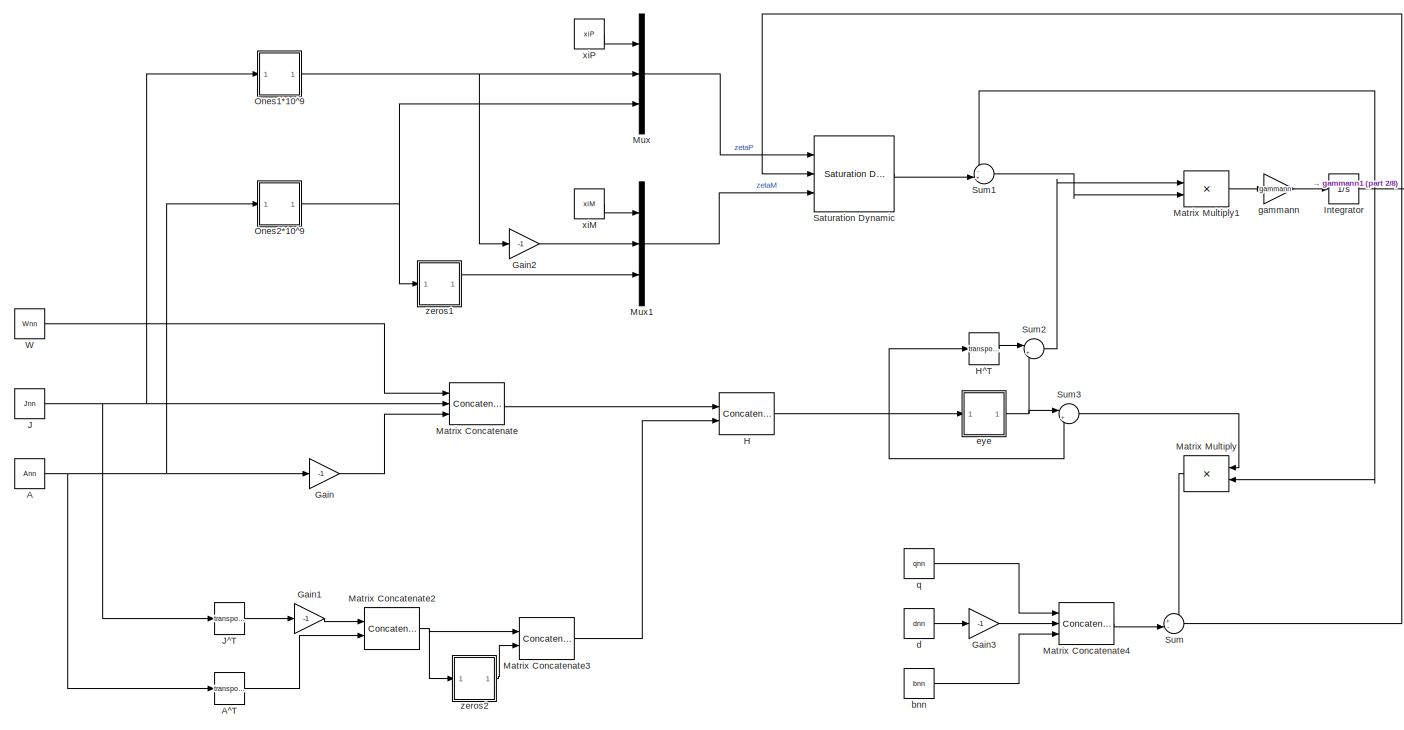
[diagram: root canvas - part 1/8, top left region]
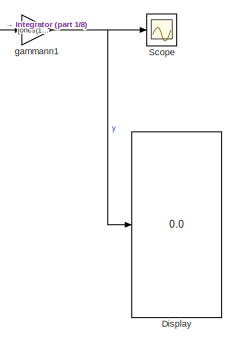
[diagram: root canvas - part 2/8, top center region]
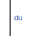
[diagram: root canvas - part 3/8, top right region]
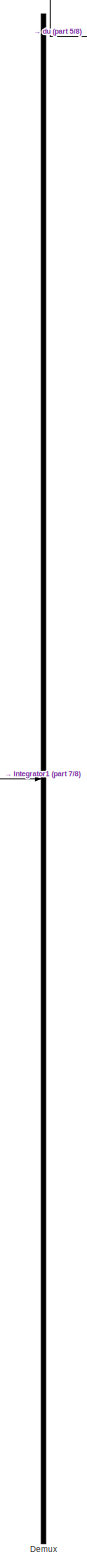
[diagram: root canvas - part 4/8, right side, full height]
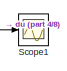
[diagram: root canvas - part 5/8, top right region]
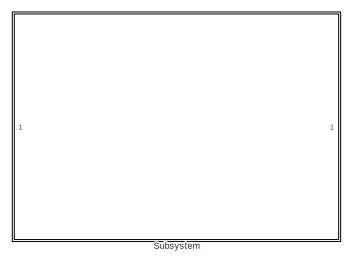
[diagram: root canvas - part 6/8, central region]
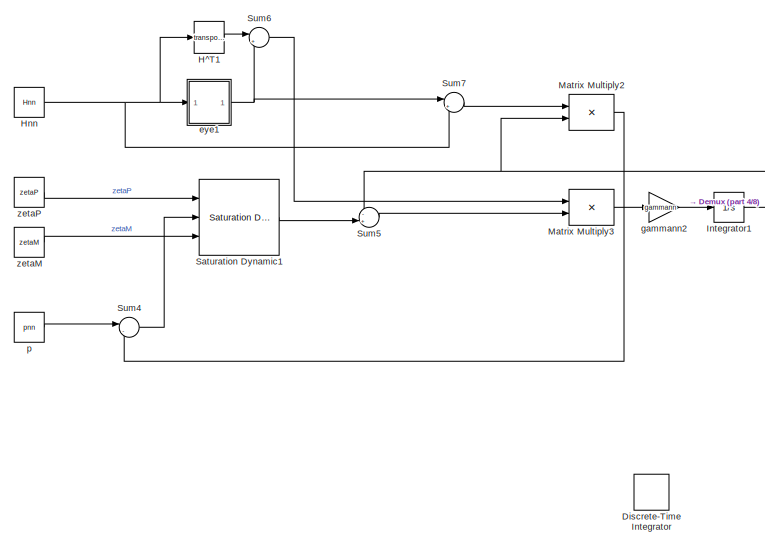
[diagram: root canvas - part 7/8, middle right region]
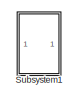
[diagram: root canvas - part 8/8, middle right region]
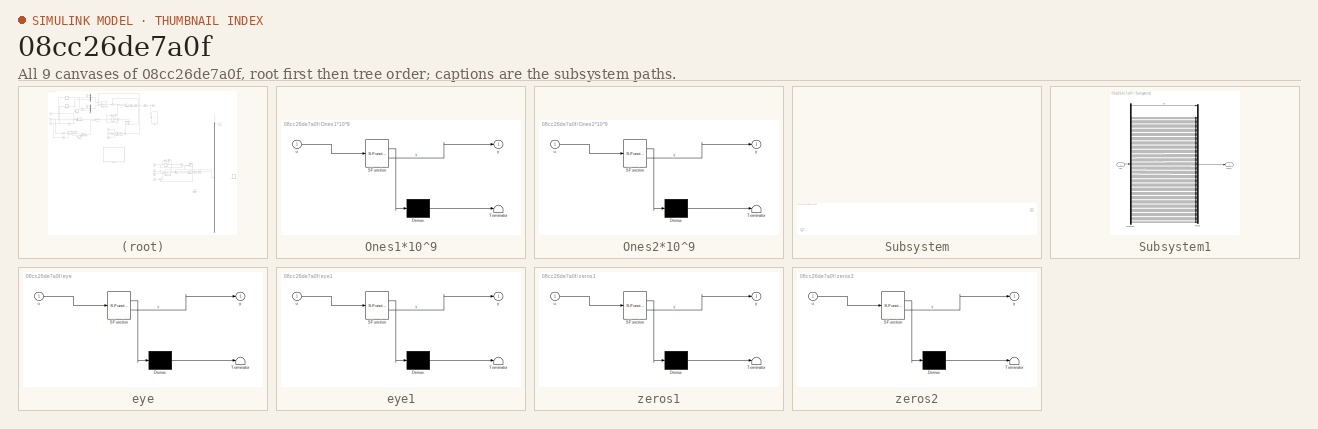
[diagram: thumbnail index - all 9 canvases of the model, root first then tree order]
MODEL slx_08cc26de7a0f
KIND model
CONFIG AbsTol = auto
CONFIG EnableMultiTasking = off
CONFIG FixedStep = auto
CONFIG MaxStep = 0.2
CONFIG MinStep = auto
CONFIG RelTol = 1e-3
CONFIG SampleTimeConstraint = Unconstrained
CONFIG SolverName = ode15s
CONFIG StartTime = 0.0
CONFIG StopTime = 0.00001
BLOCK [Constant] A
  Commented = on
  Value = Ann
BLOCK [Math] A^T
  Commented = on
  Operator = transpose
  Ports = [1, 1]
BLOCK [Demux] Demux
  Outputs = numbConstr
  Ports = [1, 90]
BLOCK [DiscreteIntegrator] Discrete-Time Integrator
  Commented = on
  ICPrevOutput = DiscIntNeverNeededParam
  ICPrevScaledInput = DiscIntNeverNeededParam
  InitialCondition = 0.2*(rand(numbConstr,1)-0.5)
  InitialConditionSetting = Auto
  Ports = [1, 1]
  SampleTime = 0.00001
BLOCK [Display] Display
  Commented = on
  Decimation = 1
  Ports = [1]
BLOCK [Gain] Gain
  Commented = on
  Gain = -1
BLOCK [Gain] Gain1
  Commented = on
  Gain = -1
BLOCK [Gain] Gain2
  Commented = on
  Gain = -1
BLOCK [Gain] Gain3
  Commented = on
  Gain = -1
BLOCK [Concatenate] H
  Commented = on
  ConcatenateDimension = 2
  Mode = Multidimensional array
  Ports = [2, 1]
BLOCK [Math] H^T
  Commented = on
  Operator = transpose
  Ports = [1, 1]
BLOCK [Math] H^T1
  Operator = transpose
  Ports = [1, 1]
BLOCK [Constant] Hnn
  Value = Hnn
BLOCK [Integrator] Integrator
  Commented = on
  InitialCondition = 0.1*(rand(numbConstr,1)-0.5)*0
  Ports = [1, 1]
BLOCK [Integrator] Integrator1
  InitialCondition = 2*(rand(numbConstr,1)-0.5)
  Ports = [1, 1]
BLOCK [Constant] J
  Commented = on
  Value = Jnn
  VectorParams1D = off
BLOCK [Math] J^T
  Commented = on
  Operator = transpose
  Ports = [1, 1]
BLOCK [Concatenate] Matrix Concatenate
  Commented = on
  Mode = Multidimensional array
  NumInputs = 3
  Ports = [3, 1]
BLOCK [Concatenate] Matrix Concatenate2
  Commented = on
  ConcatenateDimension = 2
  Mode = Multidimensional array
  Ports = [2, 1]
BLOCK [Concatenate] Matrix Concatenate3
  Commented = on
  Mode = Multidimensional array
  Ports = [2, 1]
BLOCK [Concatenate] Matrix Concatenate4
  Commented = on
  Mode = Multidimensional array
  NumInputs = 3
  Ports = [3, 1]
BLOCK [Product] Matrix Multiply
  Commented = on
  Multiplication = Matrix(*)
  NameLocation = top
  Ports = [2, 1]
BLOCK [Product] Matrix Multiply1
  Commented = on
  Multiplication = Matrix(*)
  Ports = [2, 1]
BLOCK [Product] Matrix Multiply2
  Multiplication = Matrix(*)
  Ports = [2, 1]
BLOCK [Product] Matrix Multiply3
  Multiplication = Matrix(*)
  Ports = [2, 1]
BLOCK [Mux] Mux
  Commented = on
  DisplayOption = bar
  Inputs = 3
  Ports = [3, 1]
BLOCK [Mux] Mux1
  Commented = on
  DisplayOption = bar
  Inputs = 3
  Ports = [3, 1]
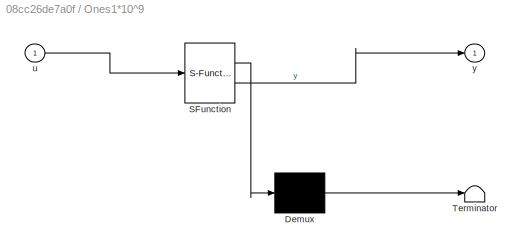
BLOCK [SubSystem] Ones1*10^9
  Commented = on
  ErrorFcn = Stateflow.Translate.translate
  PermitHierarchicalResolution = ExplicitOnly
  Ports = [1, 1]
  RequestExecContextInheritance = off
  SFBlockType = MATLAB Function
  TreatAsAtomicUnit = on
BLOCK [Demux] Ones1*10^9/ Demux 
  Outputs = 1
  Ports = [1, 1]
BLOCK [S-Function] Ones1*10^9/ SFunction 
  EnableBusSupport = on
  FunctionName = sf_sfun
  PortCounts = [1 2]
  Ports = [1, 2]
  SFcnIsStateOwnerBlock = off
  SFunctionDeploymentMode = off
  Tag = Stateflow S-Function 1
BLOCK [Terminator] Ones1*10^9/ Terminator 
BLOCK [Inport] Ones1*10^9/u
BLOCK [Outport] Ones1*10^9/y
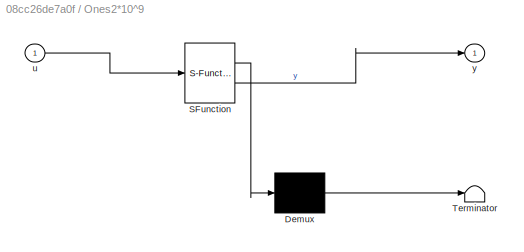
BLOCK [SubSystem] Ones2*10^9
  Commented = on
  ErrorFcn = Stateflow.Translate.translate
  PermitHierarchicalResolution = ExplicitOnly
  Ports = [1, 1]
  RequestExecContextInheritance = off
  SFBlockType = MATLAB Function
  TreatAsAtomicUnit = on
BLOCK [Demux] Ones2*10^9/ Demux 
  Outputs = 1
  Ports = [1, 1]
BLOCK [S-Function] Ones2*10^9/ SFunction 
  EnableBusSupport = on
  FunctionName = sf_sfun
  PortCounts = [1 2]
  Ports = [1, 2]
  SFcnIsStateOwnerBlock = off
  SFunctionDeploymentMode = off
  Tag = Stateflow S-Function 3
BLOCK [Terminator] Ones2*10^9/ Terminator 
BLOCK [Inport] Ones2*10^9/u
BLOCK [Outport] Ones2*10^9/y
BLOCK [Reference] Saturation Dynamic  REF=simulink/Discontinuities/Saturation
Dynamic
  Commented = on
  Ports = [3, 1]
  SourceBlock = simulink/Discontinuities/Saturation\nDynamic
  SourceProductBaseCode = SL
  SourceType = Saturation Dynamic
BLOCK [Reference] Saturation Dynamic1  REF=simulink/Discontinuities/Saturation
Dynamic
  Ports = [3, 1]
  SourceBlock = simulink/Discontinuities/Saturation\nDynamic
  SourceProductBaseCode = SL
  SourceType = Saturation Dynamic
BLOCK [Scope] Scope
  Commented = on
  Floating = off
  NumInputPorts = 1
  Ports = [1]
  ScopeSpecificationString = Simulink.scopes.TimeScopeBlockCfg('CurrentConfiguration', extmgr.ConfigurationSet(extmgr.Configuration('Core','General UI',true),extmgr.Configuration('Core','Source UI',true),extmgr.Configuration('Sources','WiredSimulink',true),extmgr.Configuration('Visuals','Time Domain',true,'SerializedDisplays',{struct('MinYLimReal','-0.13283','MaxYLimReal','0.08463','YLabelReal','','MinYLimMag','0.00000','MaxY...<+4568ch>
BLOCK [Scope] Scope1
  Floating = off
  NumInputPorts = 1
  Ports = [1]
  ScopeSpecificationString = Simulink.scopes.TimeScopeBlockCfg('CurrentConfiguration', extmgr.ConfigurationSet(extmgr.Configuration('Core','General UI',true),extmgr.Configuration('Core','Source UI',true),extmgr.Configuration('Sources','WiredSimulink',true,'DataLoggingVariableName','ScopeData1'),extmgr.Configuration('Visuals','Time Domain',true),extmgr.Configuration('Tools','Plot Navigation',true),extmgr.Configuration('Tools',...<+40ch>
BLOCK [SubSystem] Subsystem
  Commented = on
  Ports = [1, 1]
  RequestExecContextInheritance = off
BLOCK [Inport] Subsystem/In1
BLOCK [Outport] Subsystem/Out1
BLOCK [SubSystem] Subsystem1
  Commented = on
  Ports = [1, 1]
  RequestExecContextInheritance = off
BLOCK [Demux] Subsystem1/Demux1
  Outputs = numbConstr
  Ports = [1, 90]
BLOCK [Inport] Subsystem1/In1
BLOCK [Mux] Subsystem1/Mux2
  DisplayOption = bar
  Inputs = numbConstr
  Ports = [90, 1]
BLOCK [Outport] Subsystem1/Out1
BLOCK [Sum] Sum
  Commented = on
  Inputs = +-|
  Ports = [2, 1]
BLOCK [Sum] Sum1
  Commented = on
  Inputs = -+|
  Ports = [2, 1]
BLOCK [Sum] Sum2
  Commented = on
  Inputs = |++
  Ports = [2, 1]
BLOCK [Sum] Sum3
  Commented = on
  Inputs = |+-
  Ports = [2, 1]
BLOCK [Sum] Sum4
  Inputs = |-+
  Ports = [2, 1]
BLOCK [Sum] Sum5
  Inputs = -+|
  Ports = [2, 1]
BLOCK [Sum] Sum6
  Inputs = |++
  Ports = [2, 1]
BLOCK [Sum] Sum7
  Inputs = |+-
  Ports = [2, 1]
BLOCK [Constant] W
  Commented = on
  Value = Wnn
BLOCK [Constant] bnn
  Commented = on
  Value = bnn
  VectorParams1D = off
BLOCK [Constant] d
  Commented = on
  Value = dnn
  VectorParams1D = off
BLOCK [SubSystem] eye
  Commented = on
  ErrorFcn = Stateflow.Translate.translate
  PermitHierarchicalResolution = ExplicitOnly
  Ports = [1, 1]
  RequestExecContextInheritance = off
  SFBlockType = MATLAB Function
  TreatAsAtomicUnit = on
BLOCK [Demux] eye/ Demux 
  Outputs = 1
  Ports = [1, 1]
BLOCK [S-Function] eye/ SFunction 
  EnableBusSupport = on
  FunctionName = sf_sfun
  PortCounts = [1 2]
  Ports = [1, 2]
  SFcnIsStateOwnerBlock = off
  SFunctionDeploymentMode = off
  Tag = Stateflow S-Function 4
BLOCK [Terminator] eye/ Terminator 
BLOCK [Inport] eye/u
BLOCK [Outport] eye/y
BLOCK [SubSystem] eye1
  ErrorFcn = Stateflow.Translate.translate
  PermitHierarchicalResolution = ExplicitOnly
  Ports = [1, 1]
  RequestExecContextInheritance = off
  SFBlockType = MATLAB Function
  TreatAsAtomicUnit = on
BLOCK [Demux] eye1/ Demux 
  Outputs = 1
  Ports = [1, 1]
BLOCK [S-Function] eye1/ SFunction 
  EnableBusSupport = on
  FunctionName = sf_sfun
  PortCounts = [1 2]
  Ports = [1, 2]
  SFcnIsStateOwnerBlock = off
  SFunctionDeploymentMode = off
  Tag = Stateflow S-Function 8
BLOCK [Terminator] eye1/ Terminator 
BLOCK [Inport] eye1/u
BLOCK [Outport] eye1/y
BLOCK [Gain] gammann
  Commented = on
  Gain = gammann
BLOCK [Gain] gammann1
  Commented = on
  Gain = [ones(1,length(xiP)) zeros(1,numbConstr-length(xiP))]'
BLOCK [Gain] gammann2
  Gain = gammann
BLOCK [Constant] p
  Value = pnn
  VectorParams1D = off
BLOCK [Constant] q
  Commented = on
  Value = qnn
  VectorParams1D = off
BLOCK [Constant] xiM
  Commented = on
  Value = xiM
  VectorParams1D = off
BLOCK [Constant] xiP
  Commented = on
  Value = xiP
  VectorParams1D = off
BLOCK [SubSystem] zeros1
  Commented = on
  ErrorFcn = Stateflow.Translate.translate
  PermitHierarchicalResolution = ExplicitOnly
  Ports = [1, 1]
  RequestExecContextInheritance = off
  SFBlockType = MATLAB Function
  TreatAsAtomicUnit = on
BLOCK [Demux] zeros1/ Demux 
  Outputs = 1
  Ports = [1, 1]
BLOCK [S-Function] zeros1/ SFunction 
  EnableBusSupport = on
  FunctionName = sf_sfun
  PortCounts = [1 2]
  Ports = [1, 2]
  SFcnIsStateOwnerBlock = off
  SFunctionDeploymentMode = off
  Tag = Stateflow S-Function 5
BLOCK [Terminator] zeros1/ Terminator 
BLOCK [Inport] zeros1/u
BLOCK [Outport] zeros1/y
BLOCK [SubSystem] zeros2
  Commented = on
  ErrorFcn = Stateflow.Translate.translate
  PermitHierarchicalResolution = ExplicitOnly
  Ports = [1, 1]
  RequestExecContextInheritance = off
  SFBlockType = MATLAB Function
  TreatAsAtomicUnit = on
BLOCK [Demux] zeros2/ Demux 
  Outputs = 1
  Ports = [1, 1]
BLOCK [S-Function] zeros2/ SFunction 
  EnableBusSupport = on
  FunctionName = sf_sfun
  PortCounts = [1 2]
  Ports = [1, 2]
  SFcnIsStateOwnerBlock = off
  SFunctionDeploymentMode = off
  Tag = Stateflow S-Function 2
BLOCK [Terminator] zeros2/ Terminator 
BLOCK [Inport] zeros2/u
BLOCK [Outport] zeros2/y
BLOCK [Constant] zetaM
  Value = zetaM
  VectorParams1D = off
BLOCK [Constant] zetaP
  Value = zetaP
  VectorParams1D = off
NET A:1 -> A^T:1, Gain:1, Ones2*10^9:1
LINE A^T:1 -> Matrix Concatenate2:2
LINE Demux:1 -> Scope1:1
LINE Gain1:1 -> Matrix Concatenate2:1
LINE Gain2:1 -> Mux1:2
LINE Gain3:1 -> Matrix Concatenate4:2
LINE Gain:1 -> Matrix Concatenate:3
NET H:1 -> H^T:1, Sum3:2, eye:1
LINE H^T1:1 -> Sum6:1
LINE H^T:1 -> Sum2:1
NET Hnn:1 -> H^T1:1, Sum7:2, eye1:1
NET Integrator1:1 -> Demux:1, Matrix Multiply2:2, Sum5:1
NET Integrator:1 -> Matrix Multiply:2, Sum1:1, gammann1:1
NET J:1 -> J^T:1, Matrix Concatenate:2, Ones1*10^9:1
LINE J^T:1 -> Gain1:1
NET Matrix Concatenate2:1 -> Matrix Concatenate3:1, zeros2:1
LINE Matrix Concatenate3:1 -> H:2
LINE Matrix Concatenate4:1 -> Sum:2
LINE Matrix Concatenate:1 -> H:1
LINE Matrix Multiply1:1 -> gammann:1
LINE Matrix Multiply2:1 -> Sum4:2
LINE Matrix Multiply3:1 -> gammann2:1
LINE Matrix Multiply:1 -> Sum:1
LINE Mux1:1 -> Saturation Dynamic:3
LINE Mux:1 -> Saturation Dynamic:1
NET Ones1*10^9:1 -> Gain2:1, Mux:2
NET Ones2*10^9:1 -> Mux:3, zeros1:1
LINE Saturation Dynamic1:1 -> Sum5:2
LINE Saturation Dynamic:1 -> Sum1:2
LINE Subsystem1/Demux1:1 -> Subsystem1/Mux2:1
LINE Subsystem1/Demux1:10 -> Subsystem1/Mux2:10
LINE Subsystem1/Demux1:11 -> Subsystem1/Mux2:11
LINE Subsystem1/Demux1:12 -> Subsystem1/Mux2:12
LINE Subsystem1/Demux1:13 -> Subsystem1/Mux2:13
LINE Subsystem1/Demux1:14 -> Subsystem1/Mux2:14
LINE Subsystem1/Demux1:15 -> Subsystem1/Mux2:15
LINE Subsystem1/Demux1:16 -> Subsystem1/Mux2:16
LINE Subsystem1/Demux1:17 -> Subsystem1/Mux2:17
LINE Subsystem1/Demux1:18 -> Subsystem1/Mux2:18
LINE Subsystem1/Demux1:19 -> Subsystem1/Mux2:19
LINE Subsystem1/Demux1:20 -> Subsystem1/Mux2:20
LINE Subsystem1/Demux1:21 -> Subsystem1/Mux2:21
LINE Subsystem1/Demux1:22 -> Subsystem1/Mux2:22
LINE Subsystem1/Demux1:23 -> Subsystem1/Mux2:23
LINE Subsystem1/Demux1:24 -> Subsystem1/Mux2:24
LINE Subsystem1/Demux1:25 -> Subsystem1/Mux2:25
LINE Subsystem1/Demux1:26 -> Subsystem1/Mux2:26
LINE Subsystem1/Demux1:27 -> Subsystem1/Mux2:27
LINE Subsystem1/Demux1:28 -> Subsystem1/Mux2:28
LINE Subsystem1/Demux1:29 -> Subsystem1/Mux2:29
LINE Subsystem1/Demux1:30 -> Subsystem1/Mux2:30
LINE Subsystem1/Demux1:31 -> Subsystem1/Mux2:31
LINE Subsystem1/Demux1:32 -> Subsystem1/Mux2:32
LINE Subsystem1/Demux1:33 -> Subsystem1/Mux2:33
LINE Subsystem1/Demux1:34 -> Subsystem1/Mux2:34
LINE Subsystem1/Demux1:35 -> Subsystem1/Mux2:35
LINE Subsystem1/Demux1:36 -> Subsystem1/Mux2:36
LINE Subsystem1/Demux1:37 -> Subsystem1/Mux2:37
LINE Subsystem1/Demux1:38 -> Subsystem1/Mux2:38
LINE Subsystem1/Demux1:39 -> Subsystem1/Mux2:39
LINE Subsystem1/Demux1:40 -> Subsystem1/Mux2:40
LINE Subsystem1/Demux1:41 -> Subsystem1/Mux2:41
LINE Subsystem1/Demux1:42 -> Subsystem1/Mux2:42
LINE Subsystem1/Demux1:43 -> Subsystem1/Mux2:43
LINE Subsystem1/Demux1:44 -> Subsystem1/Mux2:44
LINE Subsystem1/Demux1:45 -> Subsystem1/Mux2:45
LINE Subsystem1/Demux1:46 -> Subsystem1/Mux2:46
LINE Subsystem1/Demux1:47 -> Subsystem1/Mux2:47
LINE Subsystem1/Demux1:48 -> Subsystem1/Mux2:48
LINE Subsystem1/Demux1:49 -> Subsystem1/Mux2:49
LINE Subsystem1/Demux1:50 -> Subsystem1/Mux2:50
LINE Subsystem1/Demux1:51 -> Subsystem1/Mux2:51
LINE Subsystem1/Demux1:52 -> Subsystem1/Mux2:52
LINE Subsystem1/Demux1:53 -> Subsystem1/Mux2:53
LINE Subsystem1/Demux1:54 -> Subsystem1/Mux2:54
LINE Subsystem1/Demux1:55 -> Subsystem1/Mux2:55
LINE Subsystem1/Demux1:56 -> Subsystem1/Mux2:56
LINE Subsystem1/Demux1:57 -> Subsystem1/Mux2:57
LINE Subsystem1/Demux1:58 -> Subsystem1/Mux2:58
LINE Subsystem1/Demux1:59 -> Subsystem1/Mux2:59
LINE Subsystem1/Demux1:60 -> Subsystem1/Mux2:60
LINE Subsystem1/Demux1:61 -> Subsystem1/Mux2:61
LINE Subsystem1/Demux1:62 -> Subsystem1/Mux2:62
LINE Subsystem1/Demux1:63 -> Subsystem1/Mux2:63
LINE Subsystem1/Demux1:64 -> Subsystem1/Mux2:64
LINE Subsystem1/Demux1:65 -> Subsystem1/Mux2:65
LINE Subsystem1/Demux1:66 -> Subsystem1/Mux2:66
LINE Subsystem1/Demux1:67 -> Subsystem1/Mux2:67
LINE Subsystem1/Demux1:68 -> Subsystem1/Mux2:68
LINE Subsystem1/Demux1:69 -> Subsystem1/Mux2:69
LINE Subsystem1/Demux1:70 -> Subsystem1/Mux2:70
LINE Subsystem1/Demux1:71 -> Subsystem1/Mux2:71
LINE Subsystem1/Demux1:72 -> Subsystem1/Mux2:72
LINE Subsystem1/Demux1:73 -> Subsystem1/Mux2:73
LINE Subsystem1/Demux1:74 -> Subsystem1/Mux2:74
LINE Subsystem1/Demux1:75 -> Subsystem1/Mux2:75
LINE Subsystem1/Demux1:76 -> Subsystem1/Mux2:76
LINE Subsystem1/Demux1:77 -> Subsystem1/Mux2:77
LINE Subsystem1/Demux1:78 -> Subsystem1/Mux2:78
LINE Subsystem1/Demux1:79 -> Subsystem1/Mux2:79
LINE Subsystem1/Demux1:80 -> Subsystem1/Mux2:80
LINE Subsystem1/Demux1:81 -> Subsystem1/Mux2:81
LINE Subsystem1/Demux1:82 -> Subsystem1/Mux2:82
LINE Subsystem1/Demux1:83 -> Subsystem1/Mux2:83
LINE Subsystem1/Demux1:84 -> Subsystem1/Mux2:84
LINE Subsystem1/Demux1:85 -> Subsystem1/Mux2:85
LINE Subsystem1/Demux1:86 -> Subsystem1/Mux2:86
LINE Subsystem1/Demux1:87 -> Subsystem1/Mux2:87
LINE Subsystem1/Demux1:88 -> Subsystem1/Mux2:88
LINE Subsystem1/Demux1:89 -> Subsystem1/Mux2:89
LINE Subsystem1/Demux1:90 -> Subsystem1/Mux2:90
LINE Subsystem1/In1:1 -> Subsystem1/Demux1:1
LINE Subsystem1/Mux2:1 -> Subsystem1/Out1:1
LINE Sum1:1 -> Matrix Multiply1:2
LINE Sum2:1 -> Matrix Multiply1:1
LINE Sum3:1 -> Matrix Multiply:1
LINE Sum4:1 -> Saturation Dynamic1:2
LINE Sum5:1 -> Matrix Multiply3:2
LINE Sum6:1 -> Matrix Multiply3:1
LINE Sum7:1 -> Matrix Multiply2:1
LINE Sum:1 -> Saturation Dynamic:2
LINE W:1 -> Matrix Concatenate:1
LINE bnn:1 -> Matrix Concatenate4:3
LINE d:1 -> Gain3:1
NET eye1:1 -> Sum6:2, Sum7:1
NET eye:1 -> Sum2:2, Sum3:1
NET gammann1:1 -> Display:1, Scope:1
LINE gammann2:1 -> Integrator1:1
LINE gammann:1 -> Integrator:1
LINE p:1 -> Sum4:1
LINE q:1 -> Matrix Concatenate4:1
LINE xiM:1 -> Mux1:1
LINE xiP:1 -> Mux:1
LINE zeros1:1 -> Mux1:3
LINE zeros2:1 -> Matrix Concatenate3:2
LINE zetaM:1 -> Saturation Dynamic1:3
LINE zetaP:1 -> Saturation Dynamic1:1
note: NET lines group one-source signal fan-out (src -> all destinations, sorted); 1:1 wires keep LINE
CHART zeros2 states=1 transitions=1
  STATE_LABEL 'eML_blk_kernel()'
  STATE_LABEL 'SCRIPT:\nfunction y = fcn(u)\n\n    asd = size(u);\n    \n\n\ny = zeros(asd(2),asd(2));\n'
CHART Ones2*10^9 states=1 transitions=1
  STATE_LABEL 'eML_blk_kernel()'
  STATE_LABEL 'SCRIPT:\nfunction y = fcn(u)\nasd = size(u);\ny = ones(asd(1),1)*10^6;\n\n\n    \n    \n\n'
CHART eye states=1 transitions=1
  STATE_LABEL 'eML_blk_kernel()'
  STATE_LABEL 'SCRIPT:\n    function y = fcn(u)\n\n       \n\n\ny = eye(length(u));\n'
CHART zeros1 states=1 transitions=1
  STATE_LABEL 'eML_blk_kernel()'
  STATE_LABEL 'SCRIPT:\nfunction y = fcn(u)\n\nasd = size(u);\ny = zeros(length(u),1);\n'
CHART eye1 states=1 transitions=1
  STATE_LABEL 'eML_blk_kernel()'
  STATE_LABEL 'SCRIPT:\n    function y = fcn(u)\n\n       \n\n\ny = eye(length(u));\n'
CHART Ones1*10^9 states=1 transitions=1
  STATE_LABEL 'eML_blk_kernel()'
  STATE_LABEL 'SCRIPT:\nfunction y = fcn(u)\nasd = size(u);\ny = ones(asd(1),1)*10^6;\n\n'
CHART  states=0 transitions=0
CHART  states=0 transitions=0
CHART  states=0 transitions=0
CHART  states=0 transitions=0
CHART  states=0 transitions=0
CHART  states=0 transitions=0
